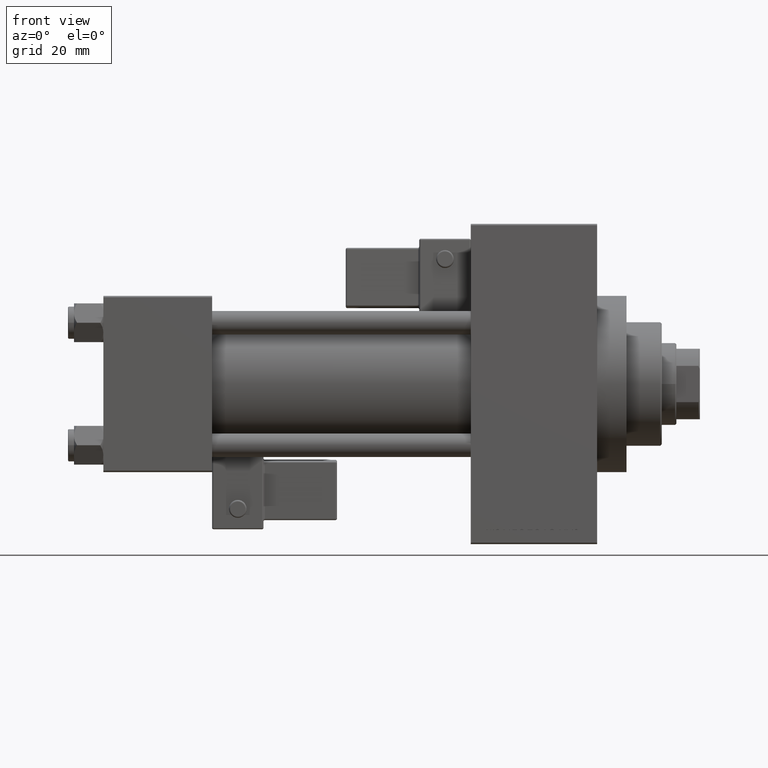
[diagram: clean part render]
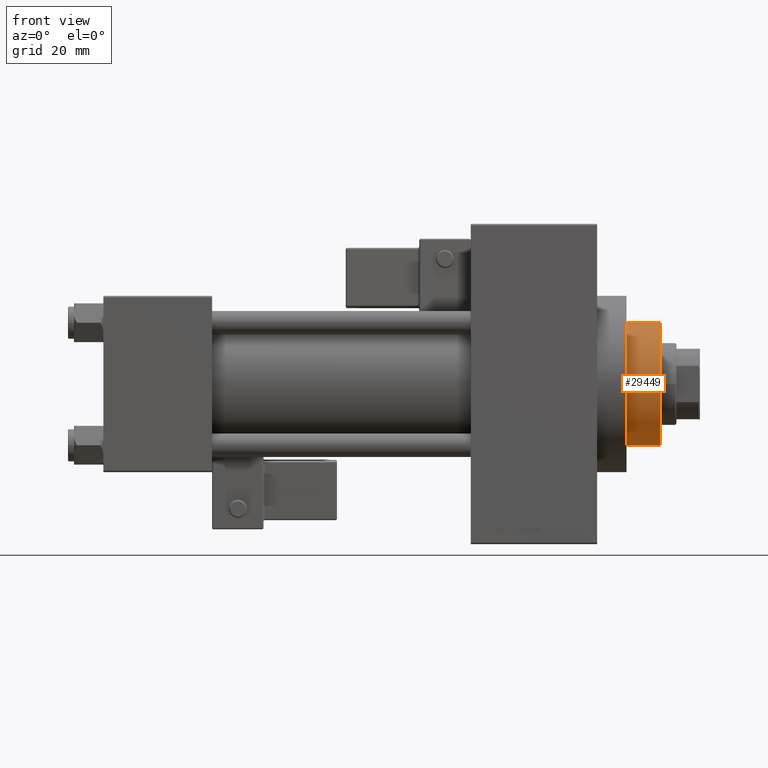
[diagram: same view with one face highlighted and labeled with its STEP entity id]
A machine part, front view. The second image highlights one B-rep face of the part: STEP entity #29449.
In plain terms, the highlighted cylindrical surface (partial cylindrical patch) has radius 21 mm, axis along (-1, 0, 0).
Its self-contained STEP definition (entity closure, byte-faithful):
#381 = ORIENTED_EDGE ( 'NONE', *, *, #5734, .F. ) ;
#606 = DIRECTION ( 'NONE',  ( -0.000000000000000000, -0.000000000000000000, -1.000000000000000000 ) ) ;
#912 = CARTESIAN_POINT ( 'NONE',  ( 0.000000000000000000, 0.000000000000000000, 54.75999999999999091 ) ) ;
#1399 = VERTEX_POINT ( 'NONE', #17342 ) ;
#1455 = CARTESIAN_POINT ( 'NONE',  ( 21.00000000000000000, 2.571758278209441661E-15, 54.75999999999999091 ) ) ;
#2113 = ORIENTED_EDGE ( 'NONE', *, *, #6018, .T. ) ;
#2574 = ORIENTED_EDGE ( 'NONE', *, *, #13783, .T. ) ;
#2585 = VERTEX_POINT ( 'NONE', #1455 ) ;
#4378 = CARTESIAN_POINT ( 'NONE',  ( 0.000000000000000000, 0.000000000000000000, 55.26000000000000512 ) ) ;
#5734 = EDGE_CURVE ( 'NONE', #27456, #1399, #17521, .T. ) ;
#5899 = DIRECTION ( 'NONE',  ( 1.000000000000000000, 0.000000000000000000, 0.000000000000000000 ) ) ;
#6018 = EDGE_CURVE ( 'NONE', #2585, #45056, #36597, .T. ) ;
#6946 = CARTESIAN_POINT ( 'NONE',  ( -21.00000000000000000, 0.000000000000000000, 54.75999999999999091 ) ) ;
#8402 = AXIS2_PLACEMENT_3D ( 'NONE', #29270, #37555, #28784 ) ;
#8948 = DIRECTION ( 'NONE',  ( 1.000000000000000000, 0.000000000000000000, 0.000000000000000000 ) ) ;
#9198 = CARTESIAN_POINT ( 'NONE',  ( 21.00000000000000000, 2.571758278209441661E-15, 55.26000000000000512 ) ) ;
#9915 = DIRECTION ( 'NONE',  ( 0.000000000000000000, 0.000000000000000000, 1.000000000000000000 ) ) ;
#11642 = CIRCLE ( 'NONE', #22083, 21.00000000000000000 ) ;
#13783 = EDGE_CURVE ( 'NONE', #47298, #1399, #38910, .T. ) ;
#14099 = EDGE_LOOP ( 'NONE', ( #24671, #2113, #36840, #37596, #2574, #381 ) ) ;
#14185 = CARTESIAN_POINT ( 'NONE',  ( 0.000000000000000000, 0.000000000000000000, 43.25999999999999801 ) ) ;
#16688 = CYLINDRICAL_SURFACE ( 'NONE', #29740, 21.00000000000000000 ) ;
#17342 = CARTESIAN_POINT ( 'NONE',  ( -21.00000000000000000, 0.000000000000000000, 43.25999999999999801 ) ) ;
#17521 = LINE ( 'NONE', #24561, #21092 ) ;
#18945 = CARTESIAN_POINT ( 'NONE',  ( 20.96385542168674831, 1.231570484631385076, 43.25999999999999801 ) ) ;
#19422 = CARTESIAN_POINT ( 'NONE',  ( -20.96385542168674831, 1.231570484631382412, 43.25999999999999801 ) ) ;
#20892 = AXIS2_PLACEMENT_3D ( 'NONE', #912, #24046, #8948 ) ;
#21092 = VECTOR ( 'NONE', #36115, 1000.000000000000000 ) ;
#21793 = VERTEX_POINT ( 'NONE', #18945 ) ;
#22083 = AXIS2_PLACEMENT_3D ( 'NONE', #14185, #9915, #5899 ) ;
#23620 = CARTESIAN_POINT ( 'NONE',  ( 0.000000000000000000, 0.000000000000000000, 43.25999999999999801 ) ) ;
#24046 = DIRECTION ( 'NONE',  ( 0.000000000000000000, 0.000000000000000000, -1.000000000000000000 ) ) ;
#24561 = CARTESIAN_POINT ( 'NONE',  ( -21.00000000000000000, 0.000000000000000000, 55.26000000000000512 ) ) ;
#24671 = ORIENTED_EDGE ( 'NONE', *, *, #29898, .T. ) ;
#26223 = EDGE_CURVE ( 'NONE', #21793, #47298, #43275, .T. ) ;
#27456 = VERTEX_POINT ( 'NONE', #6946 ) ;
#28784 = DIRECTION ( 'NONE',  ( 1.000000000000000000, 0.000000000000000000, 0.000000000000000000 ) ) ;
#29270 = CARTESIAN_POINT ( 'NONE',  ( 0.000000000000000000, 0.000000000000000000, 43.25999999999999801 ) ) ;
#29449 = ADVANCED_FACE ( 'NONE', ( #43568 ), #16688, .T. ) ;
#29740 = AXIS2_PLACEMENT_3D ( 'NONE', #4378, #606, #31271 ) ;
#29898 = EDGE_CURVE ( 'NONE', #27456, #2585, #31330, .T. ) ;
#30917 = DIRECTION ( 'NONE',  ( 1.000000000000000000, 0.000000000000000000, 0.000000000000000000 ) ) ;
#31271 = DIRECTION ( 'NONE',  ( -1.000000000000000000, 0.000000000000000000, 0.000000000000000000 ) ) ;
#31330 = CIRCLE ( 'NONE', #20892, 21.00000000000000000 ) ;
#36115 = DIRECTION ( 'NONE',  ( -0.000000000000000000, -0.000000000000000000, -1.000000000000000000 ) ) ;
#36340 = VECTOR ( 'NONE', #48408, 1000.000000000000000 ) ;
#36597 = LINE ( 'NONE', #9198, #36340 ) ;
#36840 = ORIENTED_EDGE ( 'NONE', *, *, #39749, .T. ) ;
#37555 = DIRECTION ( 'NONE',  ( 0.000000000000000000, 0.000000000000000000, 1.000000000000000000 ) ) ;
#37596 = ORIENTED_EDGE ( 'NONE', *, *, #26223, .T. ) ;
#38702 = DIRECTION ( 'NONE',  ( 0.000000000000000000, 0.000000000000000000, 1.000000000000000000 ) ) ;
#38910 = CIRCLE ( 'NONE', #8402, 21.00000000000000000 ) ;
#39749 = EDGE_CURVE ( 'NONE', #45056, #21793, #11642, .T. ) ;
#43275 = CIRCLE ( 'NONE', #44883, 21.00000000000000000 ) ;
#43568 = FACE_OUTER_BOUND ( 'NONE', #14099, .T. ) ;
#44228 = CARTESIAN_POINT ( 'NONE',  ( 21.00000000000000000, 2.571758278209441661E-15, 43.25999999999999801 ) ) ;
#44883 = AXIS2_PLACEMENT_3D ( 'NONE', #23620, #38702, #30917 ) ;
#45056 = VERTEX_POINT ( 'NONE', #44228 ) ;
#47298 = VERTEX_POINT ( 'NONE', #19422 ) ;
#48408 = DIRECTION ( 'NONE',  ( -0.000000000000000000, -0.000000000000000000, -1.000000000000000000 ) ) ;